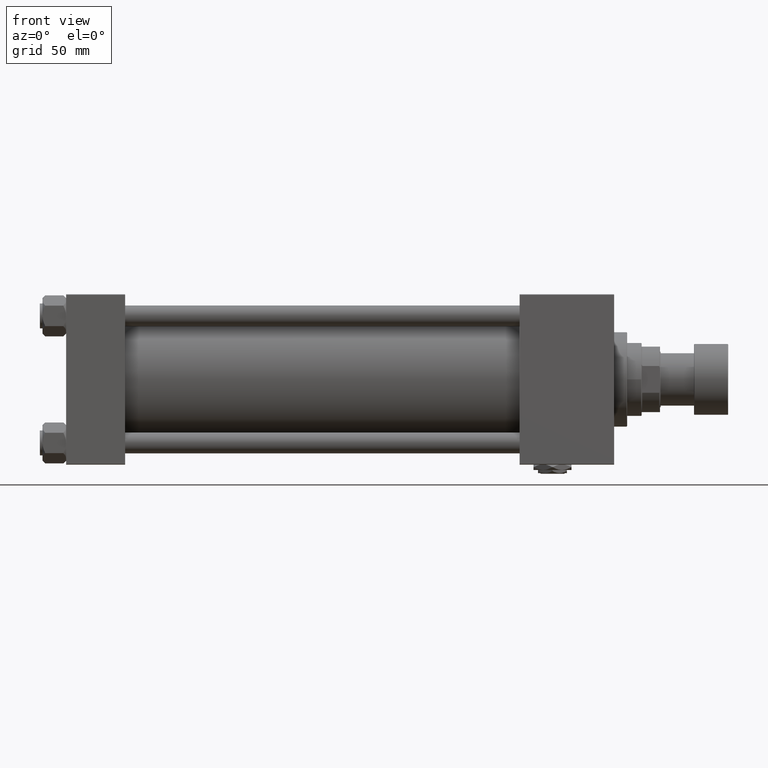
[diagram: clean part render]
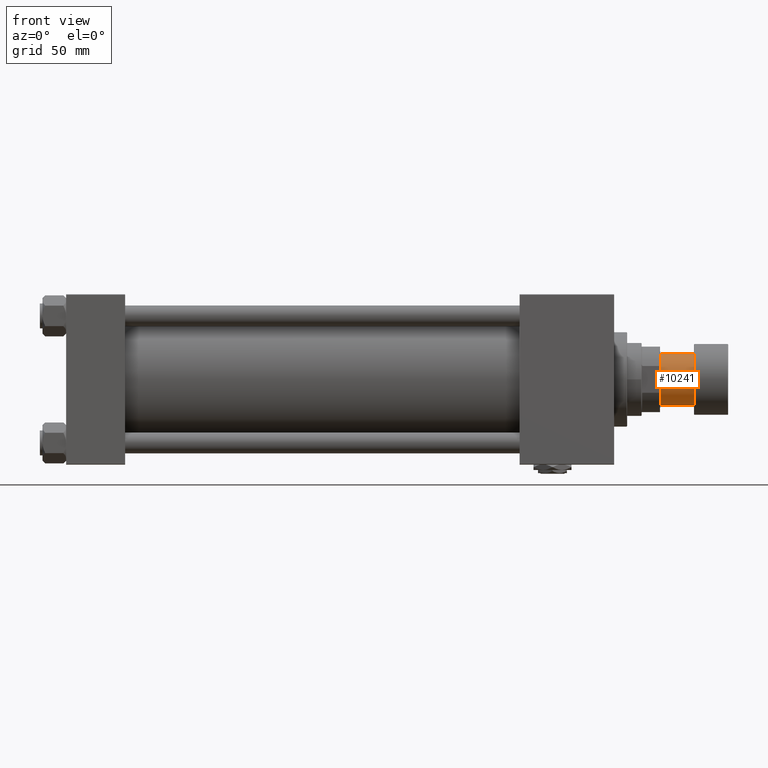
[diagram: same view with one face highlighted and labeled with its STEP entity id]
A machine part, front view. The second image highlights one B-rep face of the part: STEP entity #10241.
In plain terms, the highlighted cylindrical surface (edge-blend (fillet) strip) has radius 20 mm, axis along (1, 0, 0).
Its self-contained STEP definition (entity closure, byte-faithful):
#608 = EDGE_CURVE ( 'NONE', #15280, #39217, #5982, .T. ) ;
#4528 = VECTOR ( 'NONE', #13706, 1000.000000000000000 ) ;
#5982 = CIRCLE ( 'NONE', #44565, 20.00000000000000000 ) ;
#6274 = CARTESIAN_POINT ( 'NONE',  ( -20.00000000000000000, 2.449293598294706513E-15, -26.00000000000000000 ) ) ;
#8332 = DIRECTION ( 'NONE',  ( -0.000000000000000000, -0.000000000000000000, 1.000000000000000000 ) ) ;
#9029 = CARTESIAN_POINT ( 'NONE',  ( -20.00000000000000000, 2.449293598294706513E-15, -51.50000000000000000 ) ) ;
#10241 = ADVANCED_FACE ( 'NONE', ( #27392 ), #52068, .T. ) ;
#10451 = CARTESIAN_POINT ( 'NONE',  ( 0.000000000000000000, 0.000000000000000000, -51.50000000000000000 ) ) ;
#10531 = VERTEX_POINT ( 'NONE', #9029 ) ;
#10932 = VERTEX_POINT ( 'NONE', #46259 ) ;
#11308 = ORIENTED_EDGE ( 'NONE', *, *, #45027, .F. ) ;
#11467 = AXIS2_PLACEMENT_3D ( 'NONE', #23631, #15311, #31676 ) ;
#11990 = ORIENTED_EDGE ( 'NONE', *, *, #608, .T. ) ;
#13706 = DIRECTION ( 'NONE',  ( -0.000000000000000000, -0.000000000000000000, 1.000000000000000000 ) ) ;
#15280 = VERTEX_POINT ( 'NONE', #49454 ) ;
#15311 = DIRECTION ( 'NONE',  ( -0.000000000000000000, -0.000000000000000000, 1.000000000000000000 ) ) ;
#16907 = DIRECTION ( 'NONE',  ( 0.000000000000000000, 0.000000000000000000, -1.000000000000000000 ) ) ;
#17445 = CARTESIAN_POINT ( 'NONE',  ( 0.000000000000000000, 0.000000000000000000, -26.00000000000000000 ) ) ;
#20119 = ORIENTED_EDGE ( 'NONE', *, *, #52919, .T. ) ;
#23631 = CARTESIAN_POINT ( 'NONE',  ( 0.000000000000000000, 0.000000000000000000, -51.50000000000000000 ) ) ;
#27392 = FACE_OUTER_BOUND ( 'NONE', #34519, .T. ) ;
#29372 = AXIS2_PLACEMENT_3D ( 'NONE', #10451, #46947, #35862 ) ;
#31676 = DIRECTION ( 'NONE',  ( 1.000000000000000000, 0.000000000000000000, 0.000000000000000000 ) ) ;
#34519 = EDGE_LOOP ( 'NONE', ( #11308, #49881, #20119, #11990 ) ) ;
#35862 = DIRECTION ( 'NONE',  ( -1.000000000000000000, 0.000000000000000000, 0.000000000000000000 ) ) ;
#38796 = CIRCLE ( 'NONE', #29372, 20.00000000000000000 ) ;
#39217 = VERTEX_POINT ( 'NONE', #6274 ) ;
#41358 = LINE ( 'NONE', #44847, #44617 ) ;
#42137 = DIRECTION ( 'NONE',  ( -1.000000000000000000, 0.000000000000000000, 0.000000000000000000 ) ) ;
#44565 = AXIS2_PLACEMENT_3D ( 'NONE', #17445, #16907, #42137 ) ;
#44617 = VECTOR ( 'NONE', #8332, 1000.000000000000000 ) ;
#44847 = CARTESIAN_POINT ( 'NONE',  ( -20.00000000000000000, 2.449293598294706513E-15, -51.50000000000000000 ) ) ;
#45027 = EDGE_CURVE ( 'NONE', #10531, #39217, #41358, .T. ) ;
#45913 = CARTESIAN_POINT ( 'NONE',  ( 20.00000000000000000, 0.000000000000000000, -51.50000000000000000 ) ) ;
#46259 = CARTESIAN_POINT ( 'NONE',  ( 20.00000000000000000, 0.000000000000000000, -51.50000000000000000 ) ) ;
#46947 = DIRECTION ( 'NONE',  ( 0.000000000000000000, 0.000000000000000000, -1.000000000000000000 ) ) ;
#49454 = CARTESIAN_POINT ( 'NONE',  ( 20.00000000000000000, 0.000000000000000000, -26.00000000000000000 ) ) ;
#49881 = ORIENTED_EDGE ( 'NONE', *, *, #52012, .F. ) ;
#49942 = LINE ( 'NONE', #45913, #4528 ) ;
#52012 = EDGE_CURVE ( 'NONE', #10932, #10531, #38796, .T. ) ;
#52068 = CYLINDRICAL_SURFACE ( 'NONE', #11467, 20.00000000000000000 ) ;
#52919 = EDGE_CURVE ( 'NONE', #10932, #15280, #49942, .T. ) ;